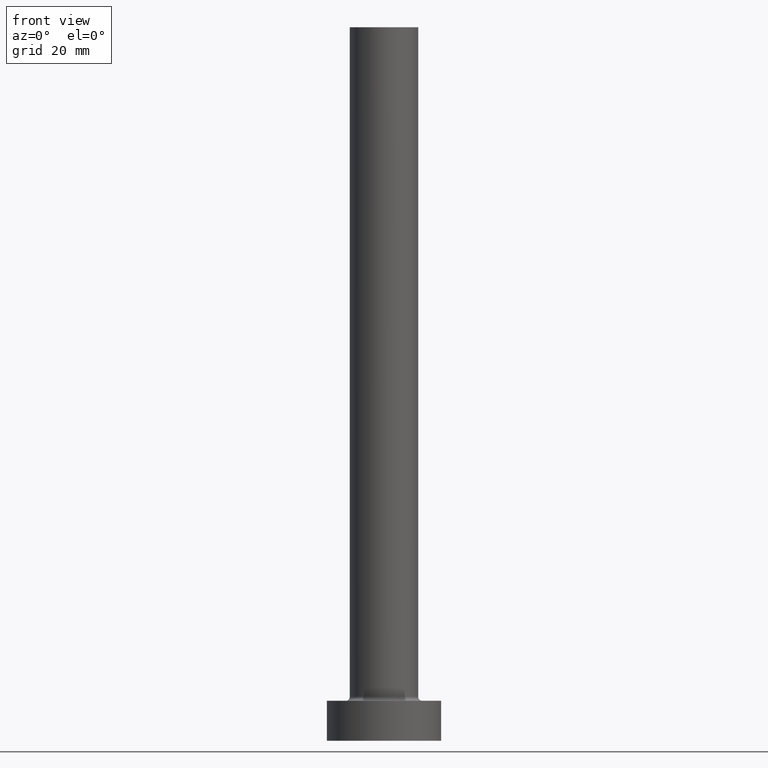
[diagram: clean part render]
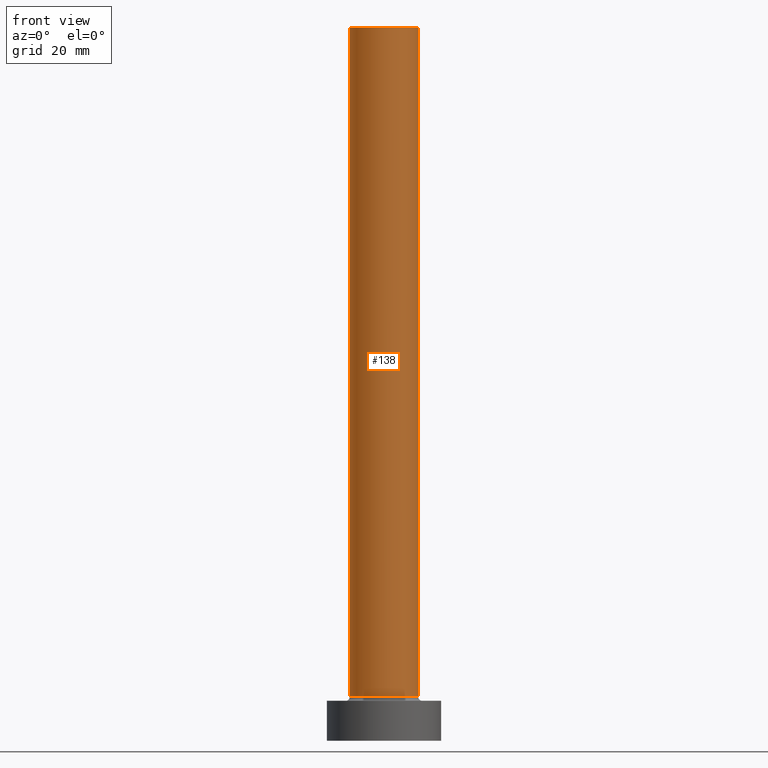
[diagram: same view with one face highlighted and labeled with its STEP entity id]
A machine part, front view. The second image highlights one B-rep face of the part: STEP entity #138.
In plain terms, the highlighted cylindrical surface (edge-blend (fillet) strip) has radius 6 mm, axis along (-0, -0, -1).
Its self-contained STEP definition (entity closure, byte-faithful):
#13 = EDGE_LOOP ( 'NONE', ( #403, #376, #415, #147 ) ) ;
#14 = DIRECTION ( 'NONE',  ( 1.000000000000000000, 0.000000000000000000, 0.000000000000000000 ) ) ;
#39 = DIRECTION ( 'NONE',  ( -0.000000000000000000, -0.000000000000000000, -1.000000000000000000 ) ) ;
#51 = VERTEX_POINT ( 'NONE', #61 ) ;
#61 = CARTESIAN_POINT ( 'NONE',  ( 6.000000000000000888, 7.347880794884120722E-16, 125.0000000000000000 ) ) ;
#118 = DIRECTION ( 'NONE',  ( 1.000000000000000000, 0.000000000000000000, 0.000000000000000000 ) ) ;
#138 = ADVANCED_FACE ( 'NONE', ( #214 ), #318, .T. ) ;
#147 = ORIENTED_EDGE ( 'NONE', *, *, #296, .T. ) ;
#148 = CARTESIAN_POINT ( 'NONE',  ( 0.000000000000000000, 0.000000000000000000, 125.0000000000000000 ) ) ;
#151 = CARTESIAN_POINT ( 'NONE',  ( -6.000000000000000888, 0.000000000000000000, 125.0000000000000000 ) ) ;
#155 = DIRECTION ( 'NONE',  ( 0.000000000000000000, 0.000000000000000000, 1.000000000000000000 ) ) ;
#161 = VERTEX_POINT ( 'NONE', #180 ) ;
#175 = VERTEX_POINT ( 'NONE', #253 ) ;
#180 = CARTESIAN_POINT ( 'NONE',  ( 6.000000000000000888, 7.347880794884120722E-16, 7.699999999999998401 ) ) ;
#205 = CARTESIAN_POINT ( 'NONE',  ( 0.000000000000000000, 0.000000000000000000, 125.0000000000000000 ) ) ;
#214 = FACE_OUTER_BOUND ( 'NONE', #13, .T. ) ;
#218 = CIRCLE ( 'NONE', #319, 6.000000000000000888 ) ;
#235 = EDGE_CURVE ( 'NONE', #51, #161, #294, .T. ) ;
#237 = DIRECTION ( 'NONE',  ( -0.000000000000000000, -0.000000000000000000, -1.000000000000000000 ) ) ;
#249 = AXIS2_PLACEMENT_3D ( 'NONE', #260, #155, #118 ) ;
#250 = VECTOR ( 'NONE', #437, 1000.000000000000000 ) ;
#253 = CARTESIAN_POINT ( 'NONE',  ( -6.000000000000000888, 0.000000000000000000, 7.699999999999998401 ) ) ;
#260 = CARTESIAN_POINT ( 'NONE',  ( 0.000000000000000000, 0.000000000000000000, 7.699999999999998401 ) ) ;
#271 = DIRECTION ( 'NONE',  ( 0.000000000000000000, 0.000000000000000000, 1.000000000000000000 ) ) ;
#294 = LINE ( 'NONE', #326, #250 ) ;
#296 = EDGE_CURVE ( 'NONE', #175, #161, #455, .T. ) ;
#318 = CYLINDRICAL_SURFACE ( 'NONE', #393, 6.000000000000000888 ) ;
#319 = AXIS2_PLACEMENT_3D ( 'NONE', #205, #271, #14 ) ;
#326 = CARTESIAN_POINT ( 'NONE',  ( 6.000000000000000888, 7.347880794884120722E-16, 125.0000000000000000 ) ) ;
#333 = VECTOR ( 'NONE', #237, 1000.000000000000000 ) ;
#365 = VERTEX_POINT ( 'NONE', #151 ) ;
#372 = CARTESIAN_POINT ( 'NONE',  ( -6.000000000000000888, 0.000000000000000000, 125.0000000000000000 ) ) ;
#376 = ORIENTED_EDGE ( 'NONE', *, *, #401, .F. ) ;
#393 = AXIS2_PLACEMENT_3D ( 'NONE', #148, #39, #426 ) ;
#401 = EDGE_CURVE ( 'NONE', #365, #51, #218, .T. ) ;
#403 = ORIENTED_EDGE ( 'NONE', *, *, #235, .F. ) ;
#404 = LINE ( 'NONE', #372, #333 ) ;
#415 = ORIENTED_EDGE ( 'NONE', *, *, #422, .T. ) ;
#422 = EDGE_CURVE ( 'NONE', #365, #175, #404, .T. ) ;
#426 = DIRECTION ( 'NONE',  ( -1.000000000000000000, 0.000000000000000000, 0.000000000000000000 ) ) ;
#437 = DIRECTION ( 'NONE',  ( -0.000000000000000000, -0.000000000000000000, -1.000000000000000000 ) ) ;
#455 = CIRCLE ( 'NONE', #249, 6.000000000000000888 ) ;